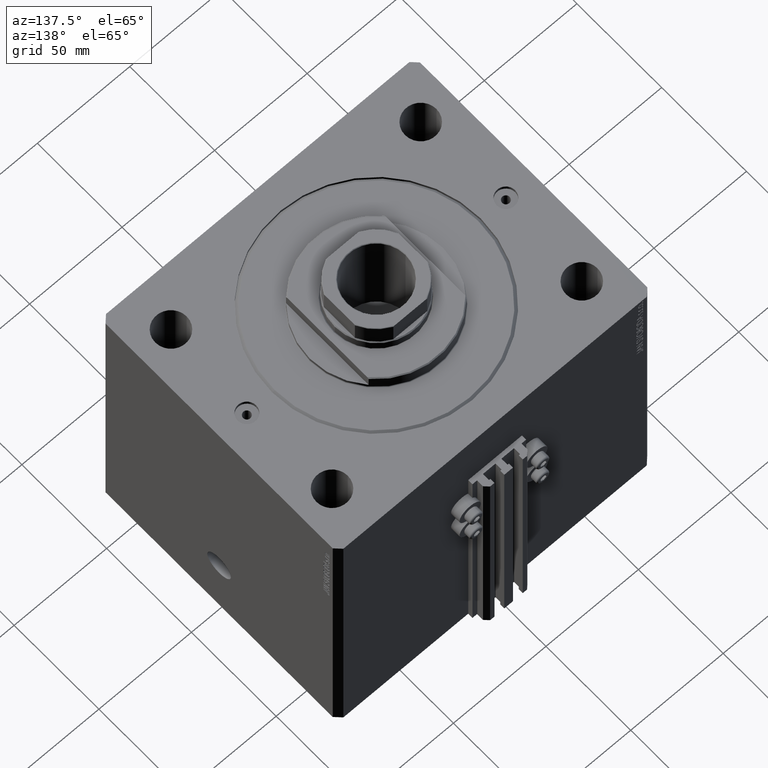
[diagram: clean part render]
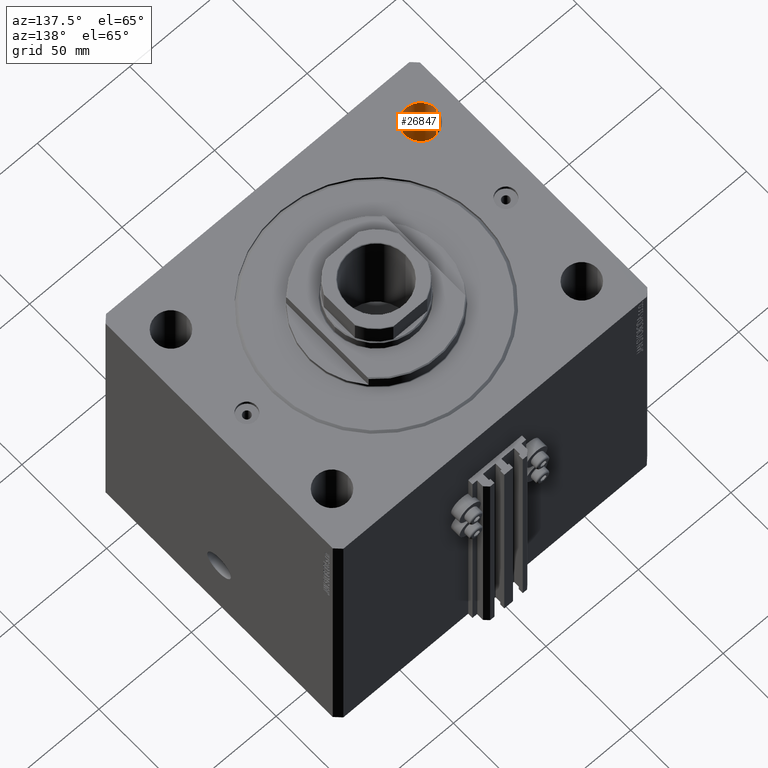
[diagram: same view with one face highlighted and labeled with its STEP entity id]
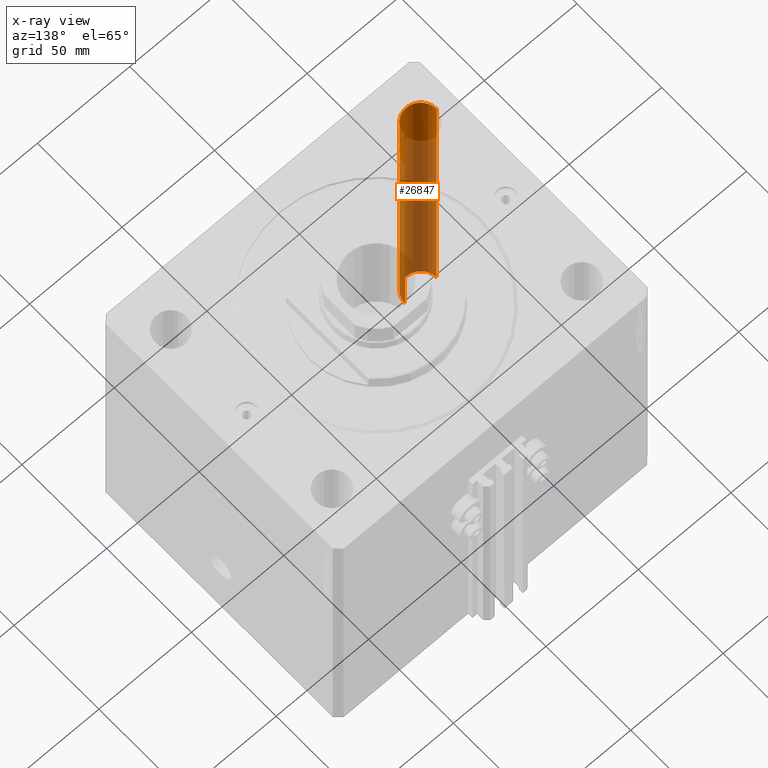
[diagram: x-ray of the same camera — body ghosted, the highlighted face saturated]
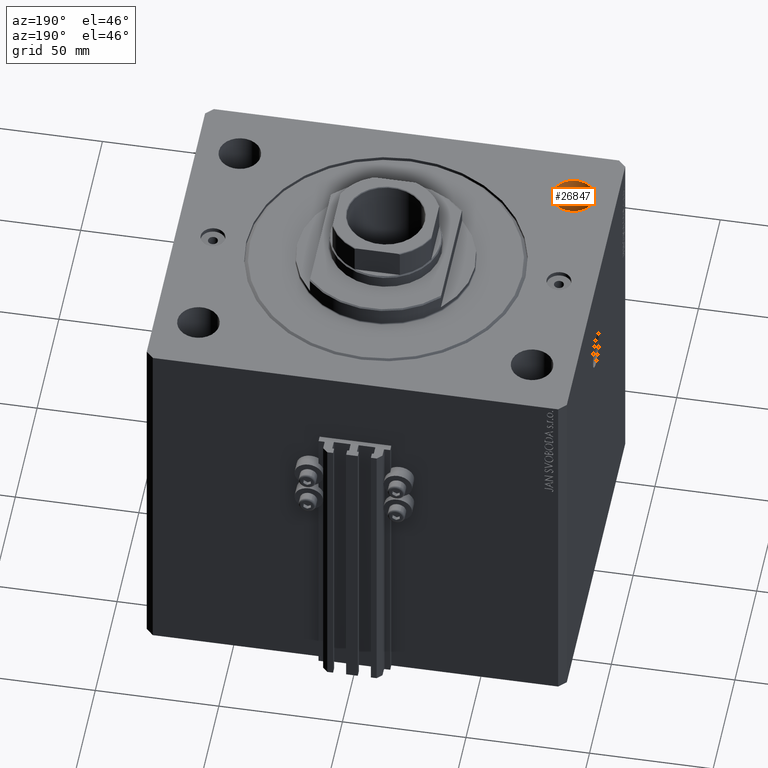
[diagram: same view with one face highlighted and labeled with its STEP entity id]
A machine part, auxiliary view. The second image highlights one B-rep face of the part: STEP entity #26847.
The next image is the same camera in x-ray: the body ghosted, the highlighted face saturated — about 78% of this face is hidden behind the body in this view.
A second angle (auxiliary view) of the same face is appended — the face is thin or edge-on in the first view.
In plain terms, the highlighted cylindrical surface (edge-blend (fillet) strip) has radius 8.5 mm, axis along (0, 0, 1).
Its self-contained STEP definition (entity closure, byte-faithful):
#548 = DIRECTION ( 'NONE',  ( 0.000000000000000000, 0.000000000000000000, 1.000000000000000000 ) ) ;
#2743 = DIRECTION ( 'NONE',  ( -0.000000000000000000, -0.000000000000000000, 1.000000000000000000 ) ) ;
#4882 = EDGE_LOOP ( 'NONE', ( #7947, #45402, #43965, #23508 ) ) ;
#5210 = AXIS2_PLACEMENT_3D ( 'NONE', #23970, #23736, #35165 ) ;
#7947 = ORIENTED_EDGE ( 'NONE', *, *, #25267, .T. ) ;
#9172 = CYLINDRICAL_SURFACE ( 'NONE', #5210, 8.499999999999992895 ) ;
#9711 = AXIS2_PLACEMENT_3D ( 'NONE', #24149, #10071, #21275 ) ;
#10071 = DIRECTION ( 'NONE',  ( -0.000000000000000000, -0.000000000000000000, -1.000000000000000000 ) ) ;
#11559 = DIRECTION ( 'NONE',  ( 1.000000000000000000, 0.000000000000000000, 0.000000000000000000 ) ) ;
#15782 = VECTOR ( 'NONE', #2743, 1000.000000000000000 ) ;
#16341 = EDGE_CURVE ( 'NONE', #39930, #39629, #42315, .T. ) ;
#20393 = VERTEX_POINT ( 'NONE', #47061 ) ;
#20775 = EDGE_CURVE ( 'NONE', #20393, #39629, #27837, .T. ) ;
#21095 = EDGE_CURVE ( 'NONE', #34772, #39930, #32746, .T. ) ;
#21275 = DIRECTION ( 'NONE',  ( 1.000000000000000000, 0.000000000000000000, 0.000000000000000000 ) ) ;
#21738 = AXIS2_PLACEMENT_3D ( 'NONE', #44242, #548, #11559 ) ;
#22778 = CIRCLE ( 'NONE', #9711, 8.499999999999992895 ) ;
#23508 = ORIENTED_EDGE ( 'NONE', *, *, #20775, .F. ) ;
#23736 = DIRECTION ( 'NONE',  ( -0.000000000000000000, -0.000000000000000000, 1.000000000000000000 ) ) ;
#23970 = CARTESIAN_POINT ( 'NONE',  ( -67.49999999999998579, -47.50000000000001421, -183.0416305603426395 ) ) ;
#24149 = CARTESIAN_POINT ( 'NONE',  ( -67.49999999999998579, -47.50000000000001421, -159.0000000000000000 ) ) ;
#25267 = EDGE_CURVE ( 'NONE', #20393, #34772, #22778, .T. ) ;
#25831 = DIRECTION ( 'NONE',  ( -0.000000000000000000, -0.000000000000000000, 1.000000000000000000 ) ) ;
#26847 = ADVANCED_FACE ( 'NONE', ( #41853 ), #9172, .F. ) ;
#27837 = LINE ( 'NONE', #32339, #15782 ) ;
#30396 = CARTESIAN_POINT ( 'NONE',  ( -59.00000000000000000, -47.50000000000001421, 0.000000000000000000 ) ) ;
#32339 = CARTESIAN_POINT ( 'NONE',  ( -59.00000000000000000, -47.50000000000001421, -183.0416305603426395 ) ) ;
#32746 = LINE ( 'NONE', #40632, #37136 ) ;
#34772 = VERTEX_POINT ( 'NONE', #44814 ) ;
#35165 = DIRECTION ( 'NONE',  ( 1.000000000000000000, 0.000000000000000000, 0.000000000000000000 ) ) ;
#37136 = VECTOR ( 'NONE', #25831, 1000.000000000000000 ) ;
#39629 = VERTEX_POINT ( 'NONE', #30396 ) ;
#39930 = VERTEX_POINT ( 'NONE', #44881 ) ;
#40632 = CARTESIAN_POINT ( 'NONE',  ( -75.99999999999998579, -47.50000000000001421, -183.0416305603426395 ) ) ;
#41853 = FACE_OUTER_BOUND ( 'NONE', #4882, .T. ) ;
#42315 = CIRCLE ( 'NONE', #21738, 8.499999999999992895 ) ;
#43965 = ORIENTED_EDGE ( 'NONE', *, *, #16341, .T. ) ;
#44242 = CARTESIAN_POINT ( 'NONE',  ( -67.49999999999998579, -47.50000000000001421, 0.000000000000000000 ) ) ;
#44814 = CARTESIAN_POINT ( 'NONE',  ( -75.99999999999998579, -47.50000000000001421, -159.0000000000000000 ) ) ;
#44881 = CARTESIAN_POINT ( 'NONE',  ( -75.99999999999998579, -47.50000000000001421, 0.000000000000000000 ) ) ;
#45402 = ORIENTED_EDGE ( 'NONE', *, *, #21095, .T. ) ;
#47061 = CARTESIAN_POINT ( 'NONE',  ( -59.00000000000000000, -47.50000000000001421, -159.0000000000000000 ) ) ;